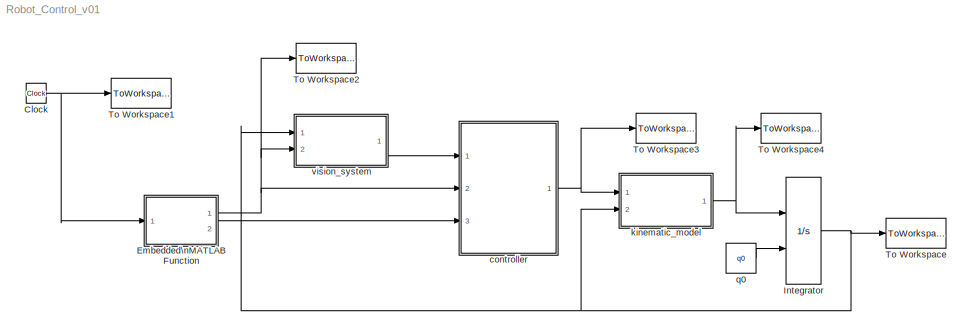
MODEL Robot_Control_v01
KIND model
BLOCK [Clock] Clock
  SID = 6
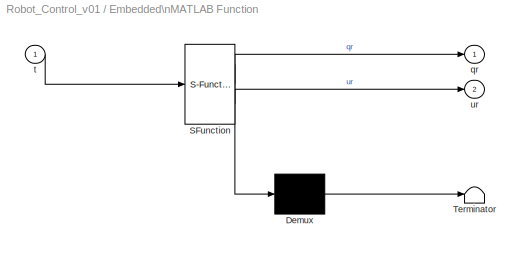
BLOCK [SubSystem] Embedded\nMATLAB Function
  ErrorFcn = Stateflow.Translate.translate
  PermitHierarchicalResolution = ExplicitOnly
  Ports = [1, 2]
  RequestExecContextInheritance = off
  SFBlockType = MATLAB Function
  SID = 11
  TreatAsAtomicUnit = on
BLOCK [Demux] Embedded\nMATLAB Function/ Demux 
  Outputs = 1
  Ports = [1, 1]
  SID = 11::27
BLOCK [S-Function] Embedded\nMATLAB Function/ SFunction 
  EnableBusSupport = on
  FunctionName = sf_sfun
  PortCounts = [1 3]
  Ports = [1, 3]
  SID = 11::26
  Tag = Stateflow S-Function Robot_Control_v01 4
BLOCK [Terminator] Embedded\nMATLAB Function/ Terminator 
  SID = 11::28
BLOCK [Outport] Embedded\nMATLAB Function/qr
  IconDisplay = Port number
  SID = 11::5
BLOCK [Inport] Embedded\nMATLAB Function/t
  IconDisplay = Port number
  SID = 11::1
BLOCK [Outport] Embedded\nMATLAB Function/ur
  IconDisplay = Port number
  Port = 2
  SID = 11::18
BLOCK [Integrator] Integrator
  InitialConditionSource = external
  Ports = [2, 1]
  SID = 2
BLOCK [ToWorkspace] To Workspace
  MaxDataPoints = inf
  Ports = [1]
  SID = 5
  SampleTime = -1
  VariableName = q
BLOCK [ToWorkspace] To Workspace1
  MaxDataPoints = inf
  Ports = [1]
  SID = 7
  SampleTime = -1
  VariableName = t
BLOCK [ToWorkspace] To Workspace2
  MaxDataPoints = inf
  Ports = [1]
  SID = 12
  SampleTime = -1
  VariableName = qr
BLOCK [ToWorkspace] To Workspace3
  MaxDataPoints = inf
  Ports = [1]
  SID = 13
  SampleTime = -1
  VariableName = u
BLOCK [ToWorkspace] To Workspace4
  MaxDataPoints = inf
  Ports = [1]
  SID = 14
  SampleTime = -1
  VariableName = qdot
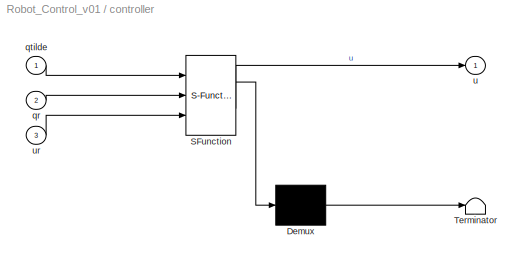
BLOCK [SubSystem] controller
  ErrorFcn = Stateflow.Translate.translate
  PermitHierarchicalResolution = ExplicitOnly
  Ports = [3, 1]
  RequestExecContextInheritance = off
  SFBlockType = MATLAB Function
  SID = 8
  TreatAsAtomicUnit = on
BLOCK [Demux] controller/ Demux 
  Outputs = 1
  Ports = [1, 1]
  SID = 8::32
BLOCK [S-Function] controller/ SFunction 
  EnableBusSupport = on
  FunctionName = sf_sfun
  PortCounts = [3 2]
  Ports = [3, 2]
  SID = 8::31
  Tag = Stateflow S-Function Robot_Control_v01 1
BLOCK [Terminator] controller/ Terminator 
  SID = 8::33
BLOCK [Inport] controller/qr
  IconDisplay = Port number
  Port = 2
  SID = 8::21
BLOCK [Inport] controller/qtilde
  IconDisplay = Port number
  SID = 8::18
BLOCK [Outport] controller/u
  IconDisplay = Port number
  SID = 8::19
BLOCK [Inport] controller/ur
  IconDisplay = Port number
  Port = 3
  SID = 8::23
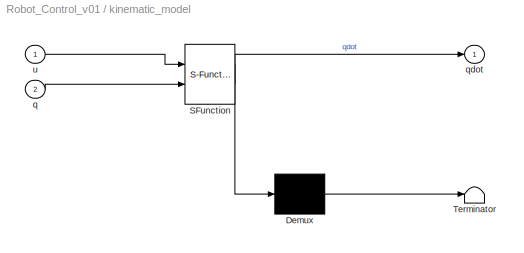
BLOCK [SubSystem] kinematic_model
  ErrorFcn = Stateflow.Translate.translate
  PermitHierarchicalResolution = ExplicitOnly
  Ports = [2, 1]
  RequestExecContextInheritance = off
  SFBlockType = MATLAB Function
  SID = 1
  TreatAsAtomicUnit = on
BLOCK [Demux] kinematic_model/ Demux 
  Outputs = 1
  Ports = [1, 1]
  SID = 1::27
BLOCK [S-Function] kinematic_model/ SFunction 
  EnableBusSupport = on
  FunctionName = sf_sfun
  PortCounts = [2 2]
  Ports = [2, 2]
  SID = 1::26
  Tag = Stateflow S-Function Robot_Control_v01 2
BLOCK [Terminator] kinematic_model/ Terminator 
  SID = 1::28
BLOCK [Inport] kinematic_model/q
  IconDisplay = Port number
  Port = 2
  SID = 1::18
BLOCK [Outport] kinematic_model/qdot
  IconDisplay = Port number
  SID = 1::5
BLOCK [Inport] kinematic_model/u
  IconDisplay = Port number
  SID = 1::1
BLOCK [Constant] q0
  SID = 3
  Value = q0
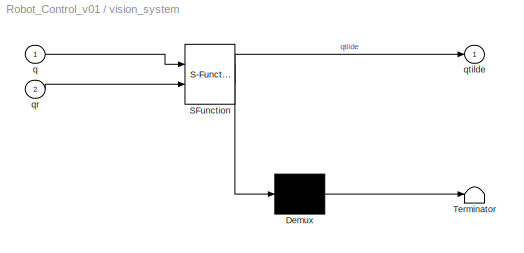
BLOCK [SubSystem] vision_system
  ErrorFcn = Stateflow.Translate.translate
  PermitHierarchicalResolution = ExplicitOnly
  Ports = [2, 1]
  RequestExecContextInheritance = off
  SFBlockType = MATLAB Function
  SID = 10
  TreatAsAtomicUnit = on
BLOCK [Demux] vision_system/ Demux 
  Outputs = 1
  Ports = [1, 1]
  SID = 10::29
BLOCK [S-Function] vision_system/ SFunction 
  EnableBusSupport = on
  FunctionName = sf_sfun
  PortCounts = [2 2]
  Ports = [2, 2]
  SID = 10::28
  Tag = Stateflow S-Function Robot_Control_v01 3
BLOCK [Terminator] vision_system/ Terminator 
  SID = 10::30
BLOCK [Inport] vision_system/q
  IconDisplay = Port number
  SID = 10::1
BLOCK [Inport] vision_system/qr
  IconDisplay = Port number
  Port = 2
  SID = 10::18
BLOCK [Outport] vision_system/qtilde
  IconDisplay = Port number
  SID = 10::5
NET Clock:1 -> Embedded\nMATLAB Function:1, To Workspace1:1
LINE Embedded\nMATLAB Function/ Demux :1 -> Embedded\nMATLAB Function/ Terminator :1
LINE Embedded\nMATLAB Function/ SFunction :1 -> Embedded\nMATLAB Function/ Demux :1
LINE Embedded\nMATLAB Function/ SFunction :2 -> Embedded\nMATLAB Function/qr:1
LINE Embedded\nMATLAB Function/ SFunction :3 -> Embedded\nMATLAB Function/ur:1
LINE Embedded\nMATLAB Function/t:1 -> Embedded\nMATLAB Function/ SFunction :1
NET Embedded\nMATLAB Function:1 -> To Workspace2:1, controller:2, vision_system:2
LINE Embedded\nMATLAB Function:2 -> controller:3
NET Integrator:1 -> To Workspace:1, kinematic_model:2, vision_system:1
LINE controller/ Demux :1 -> controller/ Terminator :1
LINE controller/ SFunction :1 -> controller/ Demux :1
LINE controller/ SFunction :2 -> controller/u:1
LINE controller/qr:1 -> controller/ SFunction :2
LINE controller/qtilde:1 -> controller/ SFunction :1
LINE controller/ur:1 -> controller/ SFunction :3
NET controller:1 -> To Workspace3:1, kinematic_model:1
LINE kinematic_model/ Demux :1 -> kinematic_model/ Terminator :1
LINE kinematic_model/ SFunction :1 -> kinematic_model/ Demux :1
LINE kinematic_model/ SFunction :2 -> kinematic_model/qdot:1
LINE kinematic_model/q:1 -> kinematic_model/ SFunction :2
LINE kinematic_model/u:1 -> kinematic_model/ SFunction :1
NET kinematic_model:1 -> Integrator:1, To Workspace4:1
LINE q0:1 -> Integrator:2
LINE vision_system/ Demux :1 -> vision_system/ Terminator :1
LINE vision_system/ SFunction :1 -> vision_system/ Demux :1
LINE vision_system/ SFunction :2 -> vision_system/qtilde:1
LINE vision_system/q:1 -> vision_system/ SFunction :1
LINE vision_system/qr:1 -> vision_system/ SFunction :2
LINE vision_system:1 -> controller:1
note: NET lines group one-source signal fan-out (src -> all destinations, sorted); 1:1 wires keep LINE
CHART controller states=1 transitions=1
  STATE_LABEL 'eML_blk_kernel()'
CHART kinematic_model states=1 transitions=1
  STATE_LABEL 'eML_blk_kernel()'
CHART vision_system states=1 transitions=1
  STATE_LABEL 'eML_blk_kernel()'
CHART Embedded\nMATLAB Function states=1 transitions=1
  STATE_LABEL 'eML_blk_kernel()'
